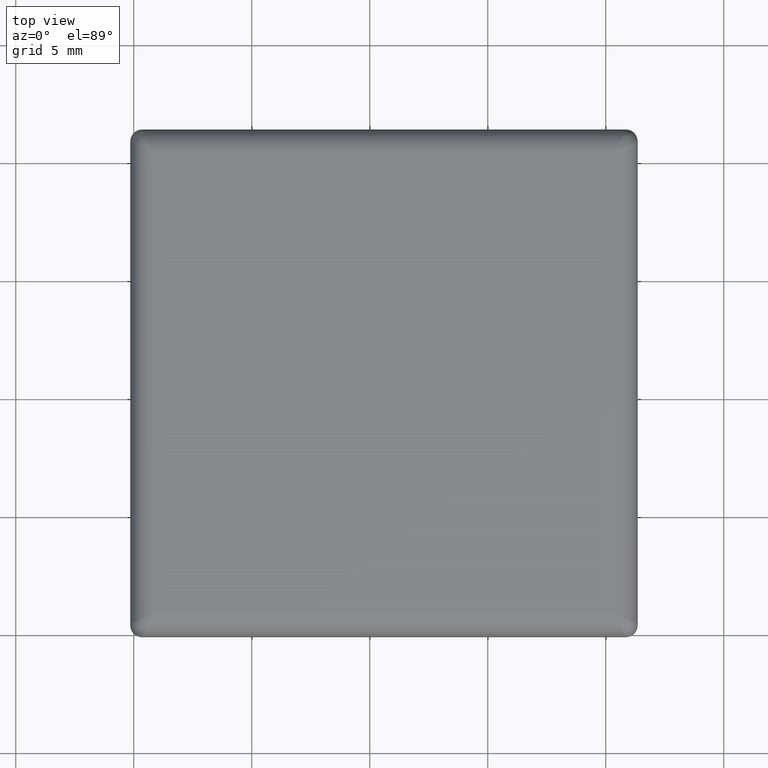
[diagram: clean part render]
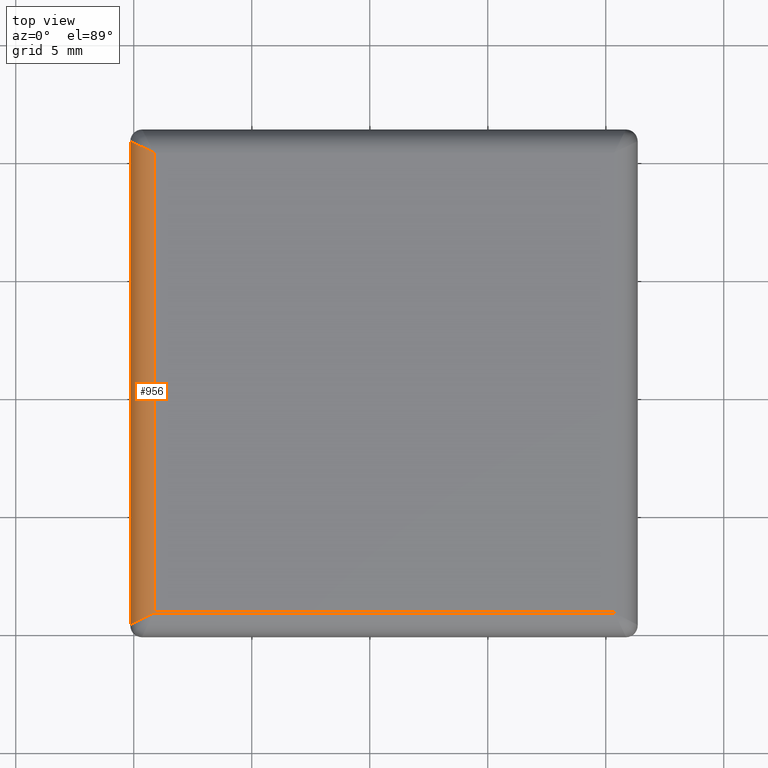
[diagram: same view with one face highlighted and labeled with its STEP entity id]
A machine part, top view. The second image highlights one B-rep face of the part: STEP entity #956.
In plain terms, the highlighted cylindrical surface (edge-blend (fillet) strip) has radius 1 mm, axis along (0, -1, 0).
Its self-contained STEP definition (entity closure, byte-faithful):
#681=CARTESIAN_POINT('',(-0.146446609406719,20.853553390593273,1.0));
#682=VERTEX_POINT('',#681);
#714=CARTESIAN_POINT('',(-0.146446609406726,0.353553390593274,1.0));
#715=VERTEX_POINT('',#714);
#722=CARTESIAN_POINT('',(-0.146446609406719,0.353553390593273,1.0));
#723=DIRECTION('',(0.0,1.0,0.0));
#724=VECTOR('',#723,20.500000000000000);
#725=LINE('',#722,#724);
#726=EDGE_CURVE('',#715,#682,#725,.T.);
#884=CARTESIAN_POINT('',(0.853553390593275,0.853553390593272,2.0));
#885=VERTEX_POINT('',#884);
#902=CARTESIAN_POINT('',(0.853553390593280,20.353553390593273,2.0));
#903=VERTEX_POINT('',#902);
#910=CARTESIAN_POINT('',(0.853553390593275,20.353553390593273,2.0));
#911=DIRECTION('',(0.0,-1.0,0.0));
#912=VECTOR('',#911,19.500000000000000);
#913=LINE('',#910,#912);
#914=EDGE_CURVE('',#903,#885,#913,.T.);
#919=CARTESIAN_POINT('',(0.853553390593275,20.853555930286934,1.0));
#920=DIRECTION('',(0.0,-1.0,0.0));
#921=DIRECTION('',(1.0,0.0,0.0));
#922=AXIS2_PLACEMENT_3D('',#919,#920,#921);
#923=CYLINDRICAL_SURFACE('',#922,1.0);
#924=CARTESIAN_POINT('',(-0.146446609406719,20.853553390593273,1.0));
#925=CARTESIAN_POINT('',(-0.146446609406719,20.853553390593270,1.585786437626905));
#926=CARTESIAN_POINT('',(0.267766952966376,20.646446609406727,2.0));
#927=CARTESIAN_POINT('',(0.853553390593281,20.353553390593273,2.0));
#935=(BOUNDED_CURVE()B_SPLINE_CURVE(3,(#924,#925,#926,#927),.UNSPECIFIED.,.F.,.U.)B_SPLINE_CURVE_WITH_KNOTS((4,4),(3.141592653589793,4.712388980384691),.UNSPECIFIED.)CURVE()GEOMETRIC_REPRESENTATION_ITEM()RATIONAL_B_SPLINE_CURVE((1.0,0.804737854124365,0.804737854124365,1.0))REPRESENTATION_ITEM(''));
#936=EDGE_CURVE('',#682,#903,#935,.T.);
#937=ORIENTED_EDGE('',*,*,#936,.F.);
#938=ORIENTED_EDGE('',*,*,#726,.F.);
#939=CARTESIAN_POINT('',(0.853553390593275,0.853553390593273,2.0));
#940=CARTESIAN_POINT('',(0.267766952966370,0.560660171779820,2.0));
#941=CARTESIAN_POINT('',(-0.146446609406725,0.353553390593273,1.585786437626905));
#942=CARTESIAN_POINT('',(-0.146446609406726,0.353553390593274,1.0));
#950=(BOUNDED_CURVE()B_SPLINE_CURVE(3,(#939,#940,#941,#942),.UNSPECIFIED.,.F.,.U.)B_SPLINE_CURVE_WITH_KNOTS((4,4),(1.570796326794897,3.141592653589793),.UNSPECIFIED.)CURVE()GEOMETRIC_REPRESENTATION_ITEM()RATIONAL_B_SPLINE_CURVE((1.0,0.804737854124365,0.804737854124365,1.0))REPRESENTATION_ITEM(''));
#951=EDGE_CURVE('',#885,#715,#950,.T.);
#952=ORIENTED_EDGE('',*,*,#951,.F.);
#953=ORIENTED_EDGE('',*,*,#914,.F.);
#954=EDGE_LOOP('',(#937,#938,#952,#953));
#955=FACE_OUTER_BOUND('',#954,.T.);
#956=ADVANCED_FACE('',(#955),#923,.T.);